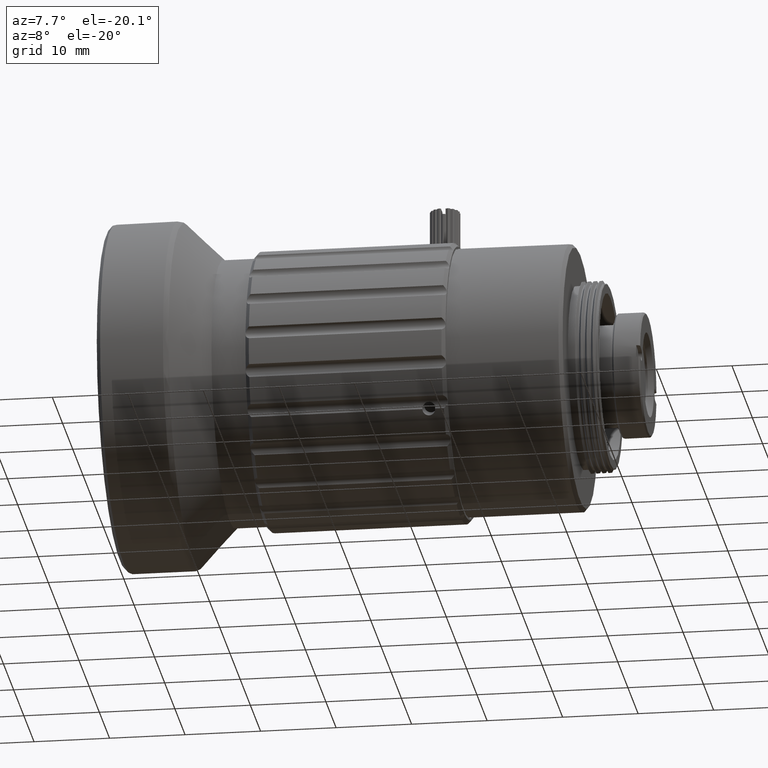
[diagram: clean part render]
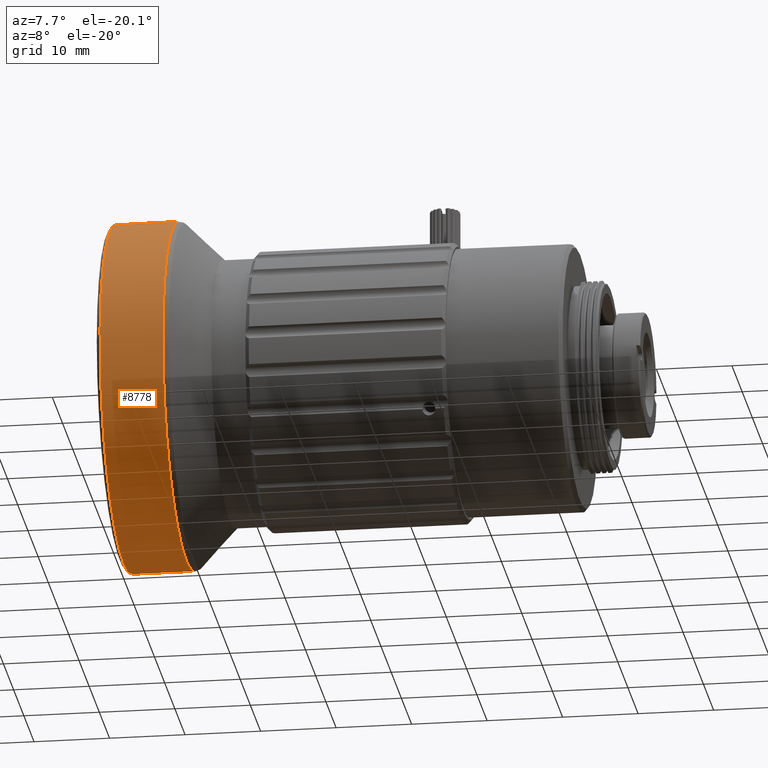
[diagram: same view with one face highlighted and labeled with its STEP entity id]
A machine part, auxiliary view. The second image highlights one B-rep face of the part: STEP entity #8778.
In plain terms, the highlighted cylindrical surface (bore or boss wall) has radius 23 mm, axis along (1, -0, -0).
Its self-contained STEP definition (entity closure, byte-faithful):
#80 = DIRECTION ( 'NONE',  ( -1.000000000000000000, 0.000000000000000000, 0.000000000000000000 ) ) ;
#804 = FACE_OUTER_BOUND ( 'NONE', #1622, .T. ) ;
#874 = FACE_OUTER_BOUND ( 'NONE', #8069, .T. ) ;
#1258 = ORIENTED_EDGE ( 'NONE', *, *, #1929, .F. ) ;
#1622 = EDGE_LOOP ( 'NONE', ( #1258 ) ) ;
#1804 = EDGE_CURVE ( 'NONE', #2266, #2266, #11927, .T. ) ;
#1929 = EDGE_CURVE ( 'NONE', #14862, #14862, #2781, .T. ) ;
#2266 = VERTEX_POINT ( 'NONE', #5529 ) ;
#2781 = CIRCLE ( 'NONE', #3995, 23.00000000000856915 ) ;
#3570 = AXIS2_PLACEMENT_3D ( 'NONE', #10088, #14695, #13407 ) ;
#3995 = AXIS2_PLACEMENT_3D ( 'NONE', #4604, #12464, #10845 ) ;
#4535 = CARTESIAN_POINT ( 'NONE',  ( -39.79189134625249835, -1.808066145625021992, 68.24071780503437878 ) ) ;
#4604 = CARTESIAN_POINT ( 'NONE',  ( -31.46826648435789053, -1.808066145625021992, 68.24071780503437878 ) ) ;
#5529 = CARTESIAN_POINT ( 'NONE',  ( -39.79189134625249835, -1.808066145625021992, 45.24071780502580964 ) ) ;
#5877 = ORIENTED_EDGE ( 'NONE', *, *, #1804, .F. ) ;
#6878 = CARTESIAN_POINT ( 'NONE',  ( -31.46826648435789053, -1.808066145625021992, 91.24071780504294793 ) ) ;
#8069 = EDGE_LOOP ( 'NONE', ( #5877 ) ) ;
#8778 = ADVANCED_FACE ( 'NONE', ( #804, #874 ), #13333, .T. ) ;
#9130 = DIRECTION ( 'NONE',  ( 0.000000000000000000, 0.000000000000000000, -1.000000000000000000 ) ) ;
#10088 = CARTESIAN_POINT ( 'NONE',  ( 50.20457836348856517, -1.808066145625021992, 68.24071780503437878 ) ) ;
#10845 = DIRECTION ( 'NONE',  ( 0.000000000000000000, 0.000000000000000000, 1.000000000000000000 ) ) ;
#11927 = CIRCLE ( 'NONE', #14593, 23.00000000000856915 ) ;
#12464 = DIRECTION ( 'NONE',  ( 1.000000000000000000, -0.000000000000000000, -0.000000000000000000 ) ) ;
#13333 = CYLINDRICAL_SURFACE ( 'NONE', #3570, 23.00000000000856915 ) ;
#13407 = DIRECTION ( 'NONE',  ( 0.000000000000000000, 0.000000000000000000, -1.000000000000000000 ) ) ;
#14593 = AXIS2_PLACEMENT_3D ( 'NONE', #4535, #80, #9130 ) ;
#14695 = DIRECTION ( 'NONE',  ( 1.000000000000000000, -0.000000000000000000, -0.000000000000000000 ) ) ;
#14862 = VERTEX_POINT ( 'NONE', #6878 ) ;